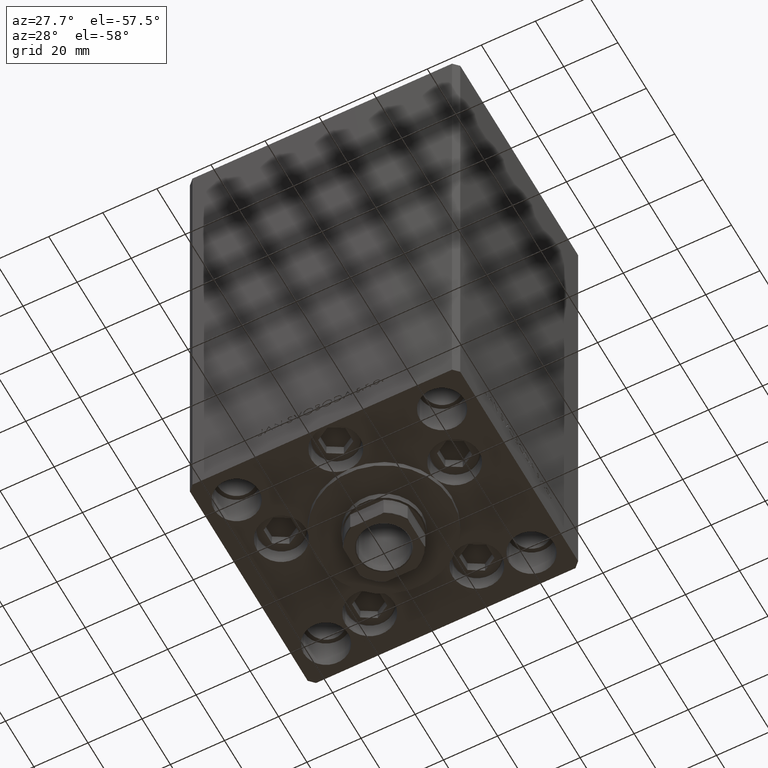
[diagram: clean part render]
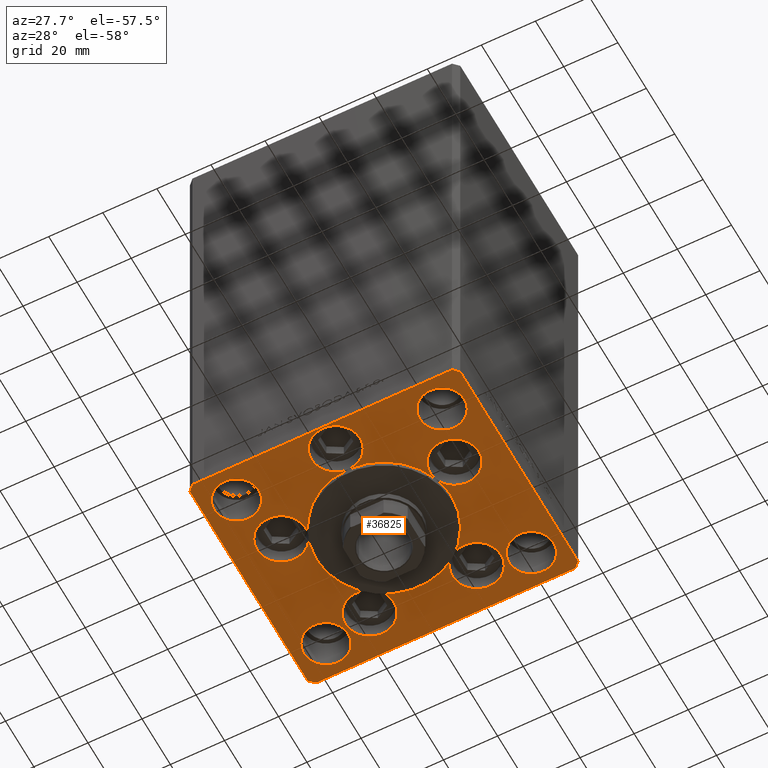
[diagram: same view with one face highlighted and labeled with its STEP entity id]
A machine part, auxiliary view. The second image highlights one B-rep face of the part: STEP entity #36825.
In plain terms, the highlighted planar face has unit normal (0, 0, -1).
Its self-contained STEP definition (entity closure, byte-faithful):
#34 = EDGE_CURVE ( 'NONE', #42295, #5720, #18733, .T. ) ;
#285 = LINE ( 'NONE', #19953, #22491 ) ;
#303 = CARTESIAN_POINT ( 'NONE',  ( 29.74999999999999645, 31.50000000000000000, 0.000000000000000000 ) ) ;
#310 = DIRECTION ( 'NONE',  ( 0.7071067811865487940, -0.7071067811865463515, 0.000000000000000000 ) ) ;
#423 = EDGE_CURVE ( 'NONE', #44337, #41658, #42174, .T. ) ;
#554 = CARTESIAN_POINT ( 'NONE',  ( -50.00000000000000000, -41.50000000000004263, 0.000000000000000000 ) ) ;
#615 = ORIENTED_EDGE ( 'NONE', *, *, #29781, .F. ) ;
#626 = VERTEX_POINT ( 'NONE', #22041 ) ;
#681 = VERTEX_POINT ( 'NONE', #18802 ) ;
#876 = CARTESIAN_POINT ( 'NONE',  ( -38.00000000000000711, -31.50000000000000711, 0.000000000000000000 ) ) ;
#1180 = DIRECTION ( 'NONE',  ( 1.000000000000000000, 0.000000000000000000, 0.000000000000000000 ) ) ;
#1415 = ORIENTED_EDGE ( 'NONE', *, *, #16223, .F. ) ;
#1533 = AXIS2_PLACEMENT_3D ( 'NONE', #18331, #30242, #45367 ) ;
#1995 = DIRECTION ( 'NONE',  ( 0.000000000000000000, 0.000000000000000000, 1.000000000000000000 ) ) ;
#2028 = DIRECTION ( 'NONE',  ( 1.000000000000000000, 0.000000000000000000, 0.000000000000000000 ) ) ;
#2060 = DIRECTION ( 'NONE',  ( 1.000000000000000000, 0.000000000000000000, 0.000000000000000000 ) ) ;
#2085 = DIRECTION ( 'NONE',  ( 1.000000000000000000, 0.000000000000000000, 0.000000000000000000 ) ) ;
#2115 = CARTESIAN_POINT ( 'NONE',  ( 10.82068048781375147, 27.62499999999998934, 0.000000000000000000 ) ) ;
#2253 = CARTESIAN_POINT ( 'NONE',  ( -32.05550741379015989, -11.33333333333332860, 0.000000000000000000 ) ) ;
#2344 = ORIENTED_EDGE ( 'NONE', *, *, #17245, .F. ) ;
#2345 = DIRECTION ( 'NONE',  ( -0.7071067811865512365, 0.7071067811865439090, 0.000000000000000000 ) ) ;
#2426 = CARTESIAN_POINT ( 'NONE',  ( 50.00000000000000000, -41.49999999999992895, 0.000000000000000000 ) ) ;
#2549 = DIRECTION ( 'NONE',  ( 1.000000000000000000, 0.000000000000000000, 0.000000000000000000 ) ) ;
#2980 = CIRCLE ( 'NONE', #22039, 8.250000000000000000 ) ;
#3232 = AXIS2_PLACEMENT_3D ( 'NONE', #30435, #26460, #4091 ) ;
#3450 = DIRECTION ( 'NONE',  ( -1.000000000000000000, -2.891205793294678326E-16, 0.000000000000000000 ) ) ;
#3805 = VERTEX_POINT ( 'NONE', #17336 ) ;
#3832 = FACE_OUTER_BOUND ( 'NONE', #23274, .T. ) ;
#4015 = ORIENTED_EDGE ( 'NONE', *, *, #15955, .T. ) ;
#4091 = DIRECTION ( 'NONE',  ( 1.000000000000000000, 0.000000000000000000, 0.000000000000000000 ) ) ;
#4159 = EDGE_CURVE ( 'NONE', #34473, #12474, #5366, .T. ) ;
#4197 = EDGE_CURVE ( 'NONE', #22442, #24308, #2980, .T. ) ;
#4213 = LINE ( 'NONE', #24095, #45004 ) ;
#4404 = EDGE_CURVE ( 'NONE', #44249, #32213, #11741, .T. ) ;
#4473 = EDGE_CURVE ( 'NONE', #626, #29919, #46023, .T. ) ;
#4521 = CIRCLE ( 'NONE', #36250, 8.249999999999992895 ) ;
#5208 = ORIENTED_EDGE ( 'NONE', *, *, #26522, .F. ) ;
#5250 = DIRECTION ( 'NONE',  ( 1.000000000000000000, 0.000000000000000000, 0.000000000000000000 ) ) ;
#5258 = VECTOR ( 'NONE', #3450, 1000.000000000000000 ) ;
#5354 = CARTESIAN_POINT ( 'NONE',  ( -10.82068048781375147, 27.62499999999998934, 0.000000000000000000 ) ) ;
#5366 = CIRCLE ( 'NONE', #24428, 9.000000000000000000 ) ;
#5369 = DIRECTION ( 'NONE',  ( 1.000000000000000000, 0.000000000000000000, 0.000000000000000000 ) ) ;
#5541 = CARTESIAN_POINT ( 'NONE',  ( 48.00000000000000711, -43.49999999999992184, 0.000000000000000000 ) ) ;
#5720 = VERTEX_POINT ( 'NONE', #47426 ) ;
#5745 = CARTESIAN_POINT ( 'NONE',  ( -38.00000000000000000, 31.50000000000000000, 0.000000000000000000 ) ) ;
#6070 = VERTEX_POINT ( 'NONE', #15976 ) ;
#6240 = DIRECTION ( 'NONE',  ( 0.000000000000000000, 0.000000000000000000, 1.000000000000000000 ) ) ;
#6695 = VERTEX_POINT ( 'NONE', #6925 ) ;
#6925 = CARTESIAN_POINT ( 'NONE',  ( -46.25000000000000000, 31.50000000000000000, 0.000000000000000000 ) ) ;
#7075 = FACE_BOUND ( 'NONE', #24535, .T. ) ;
#7251 = VERTEX_POINT ( 'NONE', #44015 ) ;
#7422 = DIRECTION ( 'NONE',  ( 1.000000000000000000, 0.000000000000000000, 0.000000000000000000 ) ) ;
#7758 = DIRECTION ( 'NONE',  ( 1.000000000000000000, 1.156482317317871331E-15, 0.000000000000000000 ) ) ;
#7968 = DIRECTION ( 'NONE',  ( 0.000000000000000000, 0.000000000000000000, 1.000000000000000000 ) ) ;
#7997 = AXIS2_PLACEMENT_3D ( 'NONE', #18152, #17425, #14167 ) ;
#8605 = ORIENTED_EDGE ( 'NONE', *, *, #45730, .F. ) ;
#8628 = DIRECTION ( 'NONE',  ( 0.000000000000000000, 0.000000000000000000, 1.000000000000000000 ) ) ;
#8687 = AXIS2_PLACEMENT_3D ( 'NONE', #35613, #44037, #47284 ) ;
#9290 = EDGE_CURVE ( 'NONE', #26598, #31778, #46680, .T. ) ;
#9535 = CARTESIAN_POINT ( 'NONE',  ( -14.57402977045128978, 20.31249999999999289, 0.000000000000000000 ) ) ;
#9615 = VECTOR ( 'NONE', #9988, 1000.000000000000000 ) ;
#9641 = EDGE_CURVE ( 'NONE', #12445, #42295, #36984, .T. ) ;
#9665 = EDGE_CURVE ( 'NONE', #6070, #27728, #43507, .T. ) ;
#9878 = DIRECTION ( 'NONE',  ( 1.000000000000000000, 0.000000000000000000, 0.000000000000000000 ) ) ;
#9988 = DIRECTION ( 'NONE',  ( -0.7071067811865536790, -0.7071067811865414665, 0.000000000000000000 ) ) ;
#10124 = DIRECTION ( 'NONE',  ( 0.000000000000000000, 0.000000000000000000, 1.000000000000000000 ) ) ;
#10139 = DIRECTION ( 'NONE',  ( 0.000000000000000000, 0.000000000000000000, 1.000000000000000000 ) ) ;
#10347 = DIRECTION ( 'NONE',  ( 1.000000000000000000, 0.000000000000000000, 0.000000000000000000 ) ) ;
#10395 = EDGE_CURVE ( 'NONE', #6695, #28139, #32462, .T. ) ;
#10470 = ORIENTED_EDGE ( 'NONE', *, *, #9641, .T. ) ;
#10867 = CIRCLE ( 'NONE', #40981, 8.999999999999998224 ) ;
#11266 = CARTESIAN_POINT ( 'NONE',  ( 50.00000000000000000, -41.49999999999992895, 0.000000000000000000 ) ) ;
#11288 = DIRECTION ( 'NONE',  ( 1.000000000000000000, 0.000000000000000000, 0.000000000000000000 ) ) ;
#11358 = CARTESIAN_POINT ( 'NONE',  ( -28.82068048781374969, 27.62499999999998934, 0.000000000000000000 ) ) ;
#11442 = DIRECTION ( 'NONE',  ( 1.000000000000000000, 0.000000000000000000, 0.000000000000000000 ) ) ;
#11494 = EDGE_CURVE ( 'NONE', #44249, #31182, #46744, .T. ) ;
#11581 = EDGE_CURVE ( 'NONE', #5720, #44337, #28699, .T. ) ;
#11741 = CIRCLE ( 'NONE', #39485, 8.999999999999998224 ) ;
#11810 = ORIENTED_EDGE ( 'NONE', *, *, #37778, .F. ) ;
#11870 = ORIENTED_EDGE ( 'NONE', *, *, #48665, .F. ) ;
#11888 = CARTESIAN_POINT ( 'NONE',  ( 47.99999999999999289, 43.50000000000000000, 0.000000000000000000 ) ) ;
#12106 = CARTESIAN_POINT ( 'NONE',  ( 0.000000000000000000, -25.00000000000000000, 0.000000000000000000 ) ) ;
#12145 = CARTESIAN_POINT ( 'NONE',  ( 9.000000000000000000, -34.00000000000000000, 0.000000000000000000 ) ) ;
#12445 = VERTEX_POINT ( 'NONE', #26802 ) ;
#12474 = VERTEX_POINT ( 'NONE', #12145 ) ;
#13210 = AXIS2_PLACEMENT_3D ( 'NONE', #34528, #34039, #41478 ) ;
#13287 = DIRECTION ( 'NONE',  ( 1.000000000000000000, 0.000000000000000000, 0.000000000000000000 ) ) ;
#13363 = AXIS2_PLACEMENT_3D ( 'NONE', #35825, #31385, #2028 ) ;
#13407 = DIRECTION ( 'NONE',  ( 0.000000000000000000, 0.000000000000000000, 1.000000000000000000 ) ) ;
#13438 = VERTEX_POINT ( 'NONE', #16872 ) ;
#13522 = EDGE_CURVE ( 'NONE', #29065, #34473, #38882, .T. ) ;
#13690 = DIRECTION ( 'NONE',  ( 0.000000000000000000, 0.000000000000000000, 1.000000000000000000 ) ) ;
#13756 = CIRCLE ( 'NONE', #45470, 8.250000000000000000 ) ;
#13874 = EDGE_CURVE ( 'NONE', #31182, #47960, #17500, .T. ) ;
#14109 = CIRCLE ( 'NONE', #40243, 9.000000000000000000 ) ;
#14167 = DIRECTION ( 'NONE',  ( 1.000000000000000000, 0.000000000000000000, 0.000000000000000000 ) ) ;
#14403 = ORIENTED_EDGE ( 'NONE', *, *, #11581, .T. ) ;
#14588 = CARTESIAN_POINT ( 'NONE',  ( 0.000000000000000000, -34.00000000000000000, 0.000000000000000000 ) ) ;
#14753 = EDGE_CURVE ( 'NONE', #15550, #31618, #24668, .T. ) ;
#15070 = CARTESIAN_POINT ( 'NONE',  ( 47.99999999999999289, 43.50000000000000000, 0.000000000000000000 ) ) ;
#15131 = DIRECTION ( 'NONE',  ( 0.000000000000000000, 0.000000000000000000, 1.000000000000000000 ) ) ;
#15349 = ORIENTED_EDGE ( 'NONE', *, *, #45831, .F. ) ;
#15393 = CIRCLE ( 'NONE', #29695, 25.00000000000000000 ) ;
#15550 = VERTEX_POINT ( 'NONE', #39575 ) ;
#15672 = ORIENTED_EDGE ( 'NONE', *, *, #41367, .F. ) ;
#15926 = CARTESIAN_POINT ( 'NONE',  ( 32.05550741379015989, -11.33333333333332860, 0.000000000000000000 ) ) ;
#15955 = EDGE_CURVE ( 'NONE', #41658, #42836, #44006, .T. ) ;
#15976 = CARTESIAN_POINT ( 'NONE',  ( 29.75000000000001066, -31.50000000000000711, 0.000000000000000000 ) ) ;
#16223 = EDGE_CURVE ( 'NONE', #31618, #681, #21517, .T. ) ;
#16410 = CARTESIAN_POINT ( 'NONE',  ( 0.000000000000000000, -6.938893903907228378E-15, 0.000000000000000000 ) ) ;
#16843 = CARTESIAN_POINT ( 'NONE',  ( -32.05550741379015989, -11.33333333333332860, 0.000000000000000000 ) ) ;
#16872 = CARTESIAN_POINT ( 'NONE',  ( 41.05550741379015989, -11.33333333333332860, 0.000000000000000000 ) ) ;
#17179 = DIRECTION ( 'NONE',  ( 1.000000000000000000, 0.000000000000000000, 0.000000000000000000 ) ) ;
#17245 = EDGE_CURVE ( 'NONE', #28649, #31618, #40545, .T. ) ;
#17270 = DIRECTION ( 'NONE',  ( 0.000000000000000000, 0.000000000000000000, 1.000000000000000000 ) ) ;
#17336 = CARTESIAN_POINT ( 'NONE',  ( 25.00000000000000000, -3.877276906038844941E-15, 0.000000000000000000 ) ) ;
#17425 = DIRECTION ( 'NONE',  ( 0.000000000000000000, 0.000000000000000000, 1.000000000000000000 ) ) ;
#17500 = CIRCLE ( 'NONE', #23852, 9.000000000000000000 ) ;
#17512 = CIRCLE ( 'NONE', #7997, 9.000000000000000000 ) ;
#17888 = DIRECTION ( 'NONE',  ( 0.000000000000000000, 0.000000000000000000, 1.000000000000000000 ) ) ;
#17936 = CARTESIAN_POINT ( 'NONE',  ( -48.00000000000000000, 43.49999999999997158, 0.000000000000000000 ) ) ;
#18128 = CARTESIAN_POINT ( 'NONE',  ( 0.000000000000000000, -6.938893903907228378E-15, 0.000000000000000000 ) ) ;
#18152 = CARTESIAN_POINT ( 'NONE',  ( 0.000000000000000000, -34.00000000000000000, 0.000000000000000000 ) ) ;
#18331 = CARTESIAN_POINT ( 'NONE',  ( 19.82068048781374969, 27.62499999999998934, 0.000000000000000000 ) ) ;
#18544 = ORIENTED_EDGE ( 'NONE', *, *, #14753, .F. ) ;
#18733 = LINE ( 'NONE', #11266, #41715 ) ;
#18802 = CARTESIAN_POINT ( 'NONE',  ( -41.05550741379015989, -11.33333333333332682, 0.000000000000000000 ) ) ;
#18998 = AXIS2_PLACEMENT_3D ( 'NONE', #48995, #30126, #23663 ) ;
#19255 = FACE_BOUND ( 'NONE', #29077, .T. ) ;
#19690 = DIRECTION ( 'NONE',  ( 1.000000000000000000, 0.000000000000000000, 0.000000000000000000 ) ) ;
#19953 = CARTESIAN_POINT ( 'NONE',  ( -48.00000000000000711, -43.50000000000002842, 0.000000000000000000 ) ) ;
#20285 = ORIENTED_EDGE ( 'NONE', *, *, #34, .T. ) ;
#20476 = DIRECTION ( 'NONE',  ( 0.000000000000000000, 0.000000000000000000, 1.000000000000000000 ) ) ;
#20723 = ORIENTED_EDGE ( 'NONE', *, *, #35252, .F. ) ;
#20872 = DIRECTION ( 'NONE',  ( 1.000000000000000000, 0.000000000000000000, 0.000000000000000000 ) ) ;
#21001 = AXIS2_PLACEMENT_3D ( 'NONE', #42632, #27503, #45866 ) ;
#21002 = CARTESIAN_POINT ( 'NONE',  ( 0.000000000000000000, -34.00000000000000000, 0.000000000000000000 ) ) ;
#21049 = CARTESIAN_POINT ( 'NONE',  ( 0.000000000000000000, -6.938893903907228378E-15, 0.000000000000000000 ) ) ;
#21244 = CARTESIAN_POINT ( 'NONE',  ( 50.00000000000000000, 41.50000000000000711, 0.000000000000000000 ) ) ;
#21329 = CARTESIAN_POINT ( 'NONE',  ( 14.57402977045128623, 20.31249999999998579, 0.000000000000000000 ) ) ;
#21517 = CIRCLE ( 'NONE', #37350, 9.000000000000001776 ) ;
#21537 = ORIENTED_EDGE ( 'NONE', *, *, #4404, .F. ) ;
#21796 = ORIENTED_EDGE ( 'NONE', *, *, #423, .T. ) ;
#21872 = CARTESIAN_POINT ( 'NONE',  ( 23.57022603955158502, -8.333333333333332149, 0.000000000000000000 ) ) ;
#22039 = AXIS2_PLACEMENT_3D ( 'NONE', #36119, #17270, #13287 ) ;
#22041 = CARTESIAN_POINT ( 'NONE',  ( -50.00000000000000000, -41.50000000000004263, 0.000000000000000000 ) ) ;
#22117 = AXIS2_PLACEMENT_3D ( 'NONE', #34234, #15131, #7422 ) ;
#22442 = VERTEX_POINT ( 'NONE', #303 ) ;
#22491 = VECTOR ( 'NONE', #7758, 1000.000000000000000 ) ;
#22750 = CIRCLE ( 'NONE', #13210, 9.000000000000001776 ) ;
#22977 = ORIENTED_EDGE ( 'NONE', *, *, #30020, .F. ) ;
#23274 = EDGE_LOOP ( 'NONE', ( #31569, #48963, #10470, #20285, #14403, #21796, #4015, #38114 ) ) ;
#23341 = AXIS2_PLACEMENT_3D ( 'NONE', #21049, #38908, #31978 ) ;
#23616 = AXIS2_PLACEMENT_3D ( 'NONE', #43897, #10124, #9878 ) ;
#23663 = DIRECTION ( 'NONE',  ( 1.000000000000000000, 0.000000000000000000, 0.000000000000000000 ) ) ;
#23852 = AXIS2_PLACEMENT_3D ( 'NONE', #44471, #6240, #40964 ) ;
#23978 = EDGE_LOOP ( 'NONE', ( #15672, #48839 ) ) ;
#24095 = CARTESIAN_POINT ( 'NONE',  ( -50.00000000000000711, 41.49999999999999289, 0.000000000000000000 ) ) ;
#24160 = ORIENTED_EDGE ( 'NONE', *, *, #25867, .F. ) ;
#24265 = CARTESIAN_POINT ( 'NONE',  ( -38.00000000000000711, -31.50000000000000711, 0.000000000000000000 ) ) ;
#24292 = DIRECTION ( 'NONE',  ( 0.000000000000000000, 0.000000000000000000, 1.000000000000000000 ) ) ;
#24308 = VERTEX_POINT ( 'NONE', #35312 ) ;
#24365 = AXIS2_PLACEMENT_3D ( 'NONE', #15926, #7968, #11442 ) ;
#24428 = AXIS2_PLACEMENT_3D ( 'NONE', #21002, #31936, #2085 ) ;
#24535 = EDGE_LOOP ( 'NONE', ( #35193, #38948 ) ) ;
#24668 = CIRCLE ( 'NONE', #3232, 25.00000000000000000 ) ;
#24858 = VERTEX_POINT ( 'NONE', #11358 ) ;
#25031 = EDGE_CURVE ( 'NONE', #29919, #12445, #285, .T. ) ;
#25209 = CIRCLE ( 'NONE', #23616, 8.250000000000000000 ) ;
#25638 = ORIENTED_EDGE ( 'NONE', *, *, #10395, .F. ) ;
#25695 = EDGE_CURVE ( 'NONE', #48676, #3805, #46335, .T. ) ;
#25780 = DIRECTION ( 'NONE',  ( 1.000000000000000000, 0.000000000000000000, 0.000000000000000000 ) ) ;
#25867 = EDGE_CURVE ( 'NONE', #3805, #44249, #15393, .T. ) ;
#26126 = CIRCLE ( 'NONE', #1533, 8.999999999999998224 ) ;
#26460 = DIRECTION ( 'NONE',  ( 0.000000000000000000, 0.000000000000000000, 1.000000000000000000 ) ) ;
#26522 = EDGE_CURVE ( 'NONE', #31182, #15550, #40679, .T. ) ;
#26598 = VERTEX_POINT ( 'NONE', #30026 ) ;
#26802 = CARTESIAN_POINT ( 'NONE',  ( 48.00000000000000711, -43.49999999999992184, 0.000000000000000000 ) ) ;
#27338 = AXIS2_PLACEMENT_3D ( 'NONE', #2253, #13690, #5250 ) ;
#27373 = CARTESIAN_POINT ( 'NONE',  ( 19.82068048781374969, 27.62499999999998934, 0.000000000000000000 ) ) ;
#27381 = EDGE_CURVE ( 'NONE', #31778, #26598, #38290, .T. ) ;
#27471 = DIRECTION ( 'NONE',  ( 0.000000000000000000, 0.000000000000000000, 1.000000000000000000 ) ) ;
#27503 = DIRECTION ( 'NONE',  ( 0.000000000000000000, 0.000000000000000000, 1.000000000000000000 ) ) ;
#27650 = VECTOR ( 'NONE', #310, 1000.000000000000000 ) ;
#27681 = EDGE_CURVE ( 'NONE', #28139, #6695, #13756, .T. ) ;
#27687 = CARTESIAN_POINT ( 'NONE',  ( -50.00000000000000711, 41.49999999999999289, 0.000000000000000000 ) ) ;
#27689 = AXIS2_PLACEMENT_3D ( 'NONE', #32623, #20476, #2549 ) ;
#27728 = VERTEX_POINT ( 'NONE', #40961 ) ;
#28006 = CARTESIAN_POINT ( 'NONE',  ( -29.75000000000000000, 31.50000000000000000, 0.000000000000000000 ) ) ;
#28139 = VERTEX_POINT ( 'NONE', #28006 ) ;
#28143 = ORIENTED_EDGE ( 'NONE', *, *, #25695, .F. ) ;
#28649 = VERTEX_POINT ( 'NONE', #39564 ) ;
#28670 = CARTESIAN_POINT ( 'NONE',  ( -32.05550741379015989, -11.33333333333332860, 0.000000000000000000 ) ) ;
#28699 = LINE ( 'NONE', #21244, #45946 ) ;
#28830 = DIRECTION ( 'NONE',  ( 1.000000000000000000, 0.000000000000000000, 0.000000000000000000 ) ) ;
#28944 = CIRCLE ( 'NONE', #27338, 9.000000000000001776 ) ;
#28992 = CARTESIAN_POINT ( 'NONE',  ( 0.000000000000000000, -6.938893903907228378E-15, 0.000000000000000000 ) ) ;
#29065 = VERTEX_POINT ( 'NONE', #12106 ) ;
#29077 = EDGE_LOOP ( 'NONE', ( #43609, #33120, #37459, #21537, #24160, #28143, #42510, #20723, #8605, #22977, #11870, #45591, #43014, #15349, #2344, #615, #1415, #18544, #5208, #29224, #11810, #38615 ) ) ;
#29224 = ORIENTED_EDGE ( 'NONE', *, *, #43527, .F. ) ;
#29695 = AXIS2_PLACEMENT_3D ( 'NONE', #28992, #44115, #10347 ) ;
#29781 = EDGE_CURVE ( 'NONE', #681, #28649, #28944, .T. ) ;
#29919 = VERTEX_POINT ( 'NONE', #39498 ) ;
#29934 = FACE_BOUND ( 'NONE', #44970, .T. ) ;
#30020 = EDGE_CURVE ( 'NONE', #29065, #48676, #30489, .T. ) ;
#30026 = CARTESIAN_POINT ( 'NONE',  ( -46.25000000000000711, -31.50000000000000711, 0.000000000000000000 ) ) ;
#30101 = CIRCLE ( 'NONE', #8687, 9.000000000000001776 ) ;
#30126 = DIRECTION ( 'NONE',  ( 0.000000000000000000, 0.000000000000000000, 1.000000000000000000 ) ) ;
#30186 = DIRECTION ( 'NONE',  ( -0.000000000000000000, 0.000000000000000000, 1.000000000000000000 ) ) ;
#30242 = DIRECTION ( 'NONE',  ( 0.000000000000000000, 0.000000000000000000, 1.000000000000000000 ) ) ;
#30435 = CARTESIAN_POINT ( 'NONE',  ( 0.000000000000000000, -6.938893903907228378E-15, 0.000000000000000000 ) ) ;
#30489 = CIRCLE ( 'NONE', #21001, 25.00000000000000000 ) ;
#31182 = VERTEX_POINT ( 'NONE', #9535 ) ;
#31385 = DIRECTION ( 'NONE',  ( 0.000000000000000000, 0.000000000000000000, 1.000000000000000000 ) ) ;
#31394 = EDGE_LOOP ( 'NONE', ( #39114, #25638 ) ) ;
#31569 = ORIENTED_EDGE ( 'NONE', *, *, #4473, .T. ) ;
#31618 = VERTEX_POINT ( 'NONE', #48473 ) ;
#31778 = VERTEX_POINT ( 'NONE', #32036 ) ;
#31936 = DIRECTION ( 'NONE',  ( 0.000000000000000000, 0.000000000000000000, 1.000000000000000000 ) ) ;
#31978 = DIRECTION ( 'NONE',  ( 1.000000000000000000, 0.000000000000000000, 0.000000000000000000 ) ) ;
#32036 = CARTESIAN_POINT ( 'NONE',  ( -29.75000000000000711, -31.50000000000000711, 0.000000000000000000 ) ) ;
#32213 = VERTEX_POINT ( 'NONE', #32953 ) ;
#32462 = CIRCLE ( 'NONE', #27689, 8.250000000000000000 ) ;
#32623 = CARTESIAN_POINT ( 'NONE',  ( -38.00000000000000000, 31.50000000000000000, 0.000000000000000000 ) ) ;
#32898 = CARTESIAN_POINT ( 'NONE',  ( 19.82068048781374969, 27.62499999999998934, 0.000000000000000000 ) ) ;
#32953 = CARTESIAN_POINT ( 'NONE',  ( 28.82068048781374969, 27.62499999999998934, 0.000000000000000000 ) ) ;
#33120 = ORIENTED_EDGE ( 'NONE', *, *, #36328, .F. ) ;
#33285 = CIRCLE ( 'NONE', #18998, 25.00000000000000000 ) ;
#33379 = DIRECTION ( 'NONE',  ( 1.000000000000000000, 0.000000000000000000, 0.000000000000000000 ) ) ;
#33431 = ORIENTED_EDGE ( 'NONE', *, *, #9665, .F. ) ;
#33699 = DIRECTION ( 'NONE',  ( 0.000000000000000000, 0.000000000000000000, 1.000000000000000000 ) ) ;
#34039 = DIRECTION ( 'NONE',  ( 0.000000000000000000, 0.000000000000000000, 1.000000000000000000 ) ) ;
#34234 = CARTESIAN_POINT ( 'NONE',  ( 38.00000000000000711, -31.50000000000000711, 0.000000000000000000 ) ) ;
#34473 = VERTEX_POINT ( 'NONE', #39214 ) ;
#34528 = CARTESIAN_POINT ( 'NONE',  ( 32.05550741379015989, -11.33333333333332860, 0.000000000000000000 ) ) ;
#34623 = FACE_BOUND ( 'NONE', #31394, .T. ) ;
#34758 = CIRCLE ( 'NONE', #13363, 9.000000000000000000 ) ;
#35193 = ORIENTED_EDGE ( 'NONE', *, *, #27381, .F. ) ;
#35252 = EDGE_CURVE ( 'NONE', #7251, #13438, #46555, .T. ) ;
#35282 = EDGE_CURVE ( 'NONE', #13438, #48676, #22750, .T. ) ;
#35312 = CARTESIAN_POINT ( 'NONE',  ( 46.25000000000000000, 31.50000000000000000, 0.000000000000000000 ) ) ;
#35613 = CARTESIAN_POINT ( 'NONE',  ( 32.05550741379015989, -11.33333333333332860, 0.000000000000000000 ) ) ;
#35825 = CARTESIAN_POINT ( 'NONE',  ( -19.82068048781374969, 27.62499999999998934, 0.000000000000000000 ) ) ;
#36119 = CARTESIAN_POINT ( 'NONE',  ( 38.00000000000000000, 31.50000000000000000, 0.000000000000000000 ) ) ;
#36250 = AXIS2_PLACEMENT_3D ( 'NONE', #40661, #10139, #25780 ) ;
#36287 = ORIENTED_EDGE ( 'NONE', *, *, #40418, .F. ) ;
#36328 = EDGE_CURVE ( 'NONE', #45418, #44249, #10867, .T. ) ;
#36378 = CARTESIAN_POINT ( 'NONE',  ( -48.00000000000000000, 43.49999999999997158, 0.000000000000000000 ) ) ;
#36825 = ADVANCED_FACE ( 'NONE', ( #19255, #37840, #34623, #7075, #29934, #3832 ), #45550, .T. ) ;
#36984 = LINE ( 'NONE', #5541, #39513 ) ;
#37350 = AXIS2_PLACEMENT_3D ( 'NONE', #16843, #24292, #1180 ) ;
#37383 = EDGE_CURVE ( 'NONE', #42836, #626, #4213, .T. ) ;
#37459 = ORIENTED_EDGE ( 'NONE', *, *, #45183, .F. ) ;
#37778 = EDGE_CURVE ( 'NONE', #47960, #24858, #14109, .T. ) ;
#37840 = FACE_BOUND ( 'NONE', #23978, .T. ) ;
#38080 = CARTESIAN_POINT ( 'NONE',  ( 0.000000000000000000, 0.000000000000000000, 0.000000000000000000 ) ) ;
#38114 = ORIENTED_EDGE ( 'NONE', *, *, #37383, .T. ) ;
#38156 = AXIS2_PLACEMENT_3D ( 'NONE', #28670, #43802, #2060 ) ;
#38290 = CIRCLE ( 'NONE', #39118, 8.250000000000000000 ) ;
#38385 = DIRECTION ( 'NONE',  ( 1.000000000000000000, 0.000000000000000000, 0.000000000000000000 ) ) ;
#38615 = ORIENTED_EDGE ( 'NONE', *, *, #13874, .F. ) ;
#38882 = CIRCLE ( 'NONE', #45240, 9.000000000000000000 ) ;
#38908 = DIRECTION ( 'NONE',  ( 0.000000000000000000, 0.000000000000000000, 1.000000000000000000 ) ) ;
#38948 = ORIENTED_EDGE ( 'NONE', *, *, #9290, .F. ) ;
#39010 = DIRECTION ( 'NONE',  ( 0.000000000000000000, 0.000000000000000000, 1.000000000000000000 ) ) ;
#39114 = ORIENTED_EDGE ( 'NONE', *, *, #27681, .F. ) ;
#39118 = AXIS2_PLACEMENT_3D ( 'NONE', #24265, #39369, #5369 ) ;
#39214 = CARTESIAN_POINT ( 'NONE',  ( -9.000000000000000000, -34.00000000000000000, 0.000000000000000000 ) ) ;
#39369 = DIRECTION ( 'NONE',  ( 0.000000000000000000, 0.000000000000000000, 1.000000000000000000 ) ) ;
#39485 = AXIS2_PLACEMENT_3D ( 'NONE', #32898, #41296, #33379 ) ;
#39498 = CARTESIAN_POINT ( 'NONE',  ( -48.00000000000000711, -43.50000000000002842, 0.000000000000000000 ) ) ;
#39513 = VECTOR ( 'NONE', #40707, 1000.000000000000114 ) ;
#39564 = CARTESIAN_POINT ( 'NONE',  ( -23.05550741379015633, -11.33333333333332860, 0.000000000000000000 ) ) ;
#39575 = CARTESIAN_POINT ( 'NONE',  ( -25.00000000000000000, -6.938893903907228378E-15, 0.000000000000000000 ) ) ;
#39579 = AXIS2_PLACEMENT_3D ( 'NONE', #18128, #17888, #28830 ) ;
#40208 = AXIS2_PLACEMENT_3D ( 'NONE', #38080, #30186, #11288 ) ;
#40243 = AXIS2_PLACEMENT_3D ( 'NONE', #46117, #8628, #46369 ) ;
#40418 = EDGE_CURVE ( 'NONE', #27728, #6070, #4521, .T. ) ;
#40545 = CIRCLE ( 'NONE', #38156, 9.000000000000001776 ) ;
#40661 = CARTESIAN_POINT ( 'NONE',  ( 38.00000000000000711, -31.50000000000000711, 0.000000000000000000 ) ) ;
#40679 = CIRCLE ( 'NONE', #46262, 25.00000000000000000 ) ;
#40707 = DIRECTION ( 'NONE',  ( 0.7071067811865474617, 0.7071067811865474617, 0.000000000000000000 ) ) ;
#40961 = CARTESIAN_POINT ( 'NONE',  ( 46.25000000000000000, -31.50000000000000711, 0.000000000000000000 ) ) ;
#40964 = DIRECTION ( 'NONE',  ( 1.000000000000000000, 0.000000000000000000, 0.000000000000000000 ) ) ;
#40981 = AXIS2_PLACEMENT_3D ( 'NONE', #27373, #39010, #19690 ) ;
#41296 = DIRECTION ( 'NONE',  ( 0.000000000000000000, 0.000000000000000000, 1.000000000000000000 ) ) ;
#41367 = EDGE_CURVE ( 'NONE', #24308, #22442, #25209, .T. ) ;
#41478 = DIRECTION ( 'NONE',  ( 1.000000000000000000, 0.000000000000000000, 0.000000000000000000 ) ) ;
#41658 = VERTEX_POINT ( 'NONE', #36378 ) ;
#41715 = VECTOR ( 'NONE', #48549, 1000.000000000000000 ) ;
#41890 = AXIS2_PLACEMENT_3D ( 'NONE', #876, #27471, #42598 ) ;
#41945 = DIRECTION ( 'NONE',  ( 8.360113137237620037E-17, -1.000000000000000000, 0.000000000000000000 ) ) ;
#42174 = LINE ( 'NONE', #11888, #5258 ) ;
#42295 = VERTEX_POINT ( 'NONE', #2426 ) ;
#42510 = ORIENTED_EDGE ( 'NONE', *, *, #35282, .F. ) ;
#42598 = DIRECTION ( 'NONE',  ( 1.000000000000000000, 0.000000000000000000, 0.000000000000000000 ) ) ;
#42632 = CARTESIAN_POINT ( 'NONE',  ( 0.000000000000000000, -6.938893903907228378E-15, 0.000000000000000000 ) ) ;
#42836 = VERTEX_POINT ( 'NONE', #27687 ) ;
#43014 = ORIENTED_EDGE ( 'NONE', *, *, #13522, .F. ) ;
#43507 = CIRCLE ( 'NONE', #22117, 8.249999999999992895 ) ;
#43527 = EDGE_CURVE ( 'NONE', #24858, #31182, #34758, .T. ) ;
#43609 = ORIENTED_EDGE ( 'NONE', *, *, #11494, .F. ) ;
#43802 = DIRECTION ( 'NONE',  ( 0.000000000000000000, 0.000000000000000000, 1.000000000000000000 ) ) ;
#43897 = CARTESIAN_POINT ( 'NONE',  ( 38.00000000000000000, 31.50000000000000000, 0.000000000000000000 ) ) ;
#44006 = LINE ( 'NONE', #17936, #9615 ) ;
#44015 = CARTESIAN_POINT ( 'NONE',  ( 23.05550741379015633, -11.33333333333332682, 0.000000000000000000 ) ) ;
#44037 = DIRECTION ( 'NONE',  ( 0.000000000000000000, 0.000000000000000000, 1.000000000000000000 ) ) ;
#44115 = DIRECTION ( 'NONE',  ( 0.000000000000000000, 0.000000000000000000, 1.000000000000000000 ) ) ;
#44249 = VERTEX_POINT ( 'NONE', #21329 ) ;
#44337 = VERTEX_POINT ( 'NONE', #15070 ) ;
#44471 = CARTESIAN_POINT ( 'NONE',  ( -19.82068048781374969, 27.62499999999998934, 0.000000000000000000 ) ) ;
#44970 = EDGE_LOOP ( 'NONE', ( #36287, #33431 ) ) ;
#45004 = VECTOR ( 'NONE', #41945, 1000.000000000000000 ) ;
#45183 = EDGE_CURVE ( 'NONE', #32213, #45418, #26126, .T. ) ;
#45240 = AXIS2_PLACEMENT_3D ( 'NONE', #14588, #33699, #38385 ) ;
#45367 = DIRECTION ( 'NONE',  ( 1.000000000000000000, 0.000000000000000000, 0.000000000000000000 ) ) ;
#45418 = VERTEX_POINT ( 'NONE', #2115 ) ;
#45470 = AXIS2_PLACEMENT_3D ( 'NONE', #5745, #1995, #17179 ) ;
#45550 = PLANE ( 'NONE',  #40208 ) ;
#45591 = ORIENTED_EDGE ( 'NONE', *, *, #4159, .F. ) ;
#45730 = EDGE_CURVE ( 'NONE', #48676, #7251, #30101, .T. ) ;
#45831 = EDGE_CURVE ( 'NONE', #31618, #29065, #33285, .T. ) ;
#45866 = DIRECTION ( 'NONE',  ( 1.000000000000000000, 0.000000000000000000, 0.000000000000000000 ) ) ;
#45946 = VECTOR ( 'NONE', #2345, 999.9999999999998863 ) ;
#46023 = LINE ( 'NONE', #554, #27650 ) ;
#46117 = CARTESIAN_POINT ( 'NONE',  ( -19.82068048781374969, 27.62499999999998934, 0.000000000000000000 ) ) ;
#46262 = AXIS2_PLACEMENT_3D ( 'NONE', #16410, #13407, #20872 ) ;
#46335 = CIRCLE ( 'NONE', #23341, 25.00000000000000000 ) ;
#46369 = DIRECTION ( 'NONE',  ( 1.000000000000000000, 0.000000000000000000, 0.000000000000000000 ) ) ;
#46555 = CIRCLE ( 'NONE', #24365, 9.000000000000001776 ) ;
#46680 = CIRCLE ( 'NONE', #41890, 8.250000000000000000 ) ;
#46744 = CIRCLE ( 'NONE', #39579, 25.00000000000000000 ) ;
#47284 = DIRECTION ( 'NONE',  ( 1.000000000000000000, 0.000000000000000000, 0.000000000000000000 ) ) ;
#47426 = CARTESIAN_POINT ( 'NONE',  ( 50.00000000000000000, 41.50000000000000711, 0.000000000000000000 ) ) ;
#47960 = VERTEX_POINT ( 'NONE', #5354 ) ;
#48473 = CARTESIAN_POINT ( 'NONE',  ( -23.57022603955158502, -8.333333333333332149, 0.000000000000000000 ) ) ;
#48549 = DIRECTION ( 'NONE',  ( 0.000000000000000000, 1.000000000000000000, 0.000000000000000000 ) ) ;
#48665 = EDGE_CURVE ( 'NONE', #12474, #29065, #17512, .T. ) ;
#48676 = VERTEX_POINT ( 'NONE', #21872 ) ;
#48839 = ORIENTED_EDGE ( 'NONE', *, *, #4197, .F. ) ;
#48963 = ORIENTED_EDGE ( 'NONE', *, *, #25031, .T. ) ;
#48995 = CARTESIAN_POINT ( 'NONE',  ( 0.000000000000000000, -6.938893903907228378E-15, 0.000000000000000000 ) ) ;